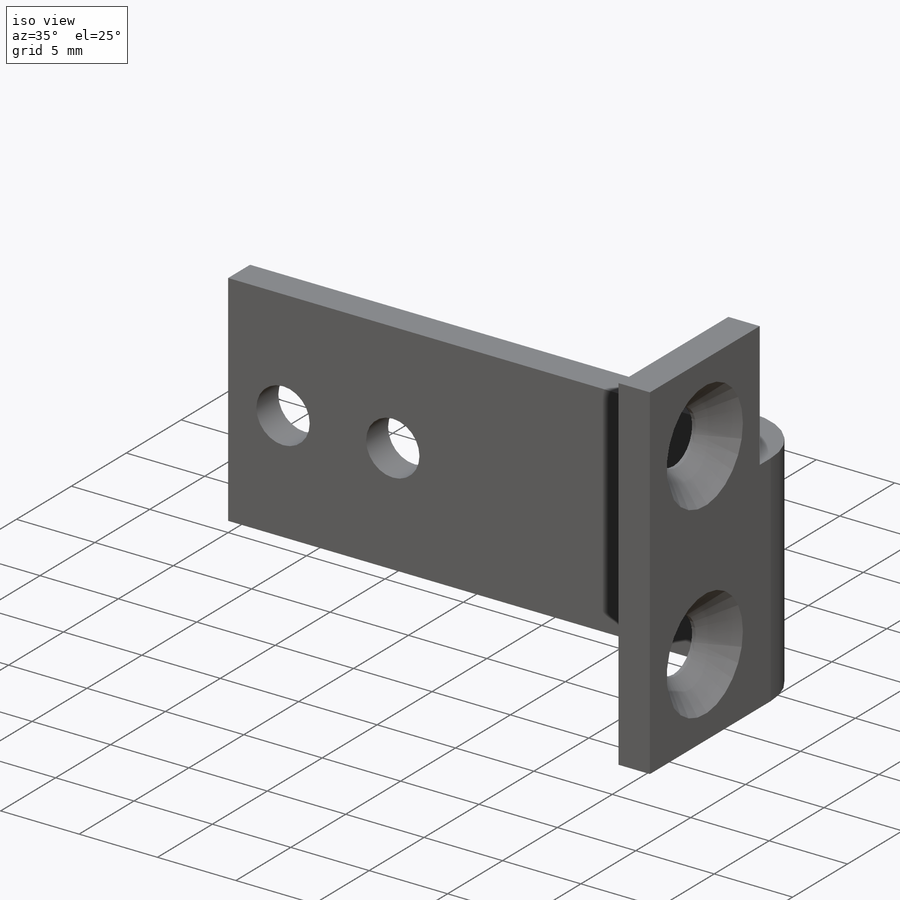
[diagram: iso view]
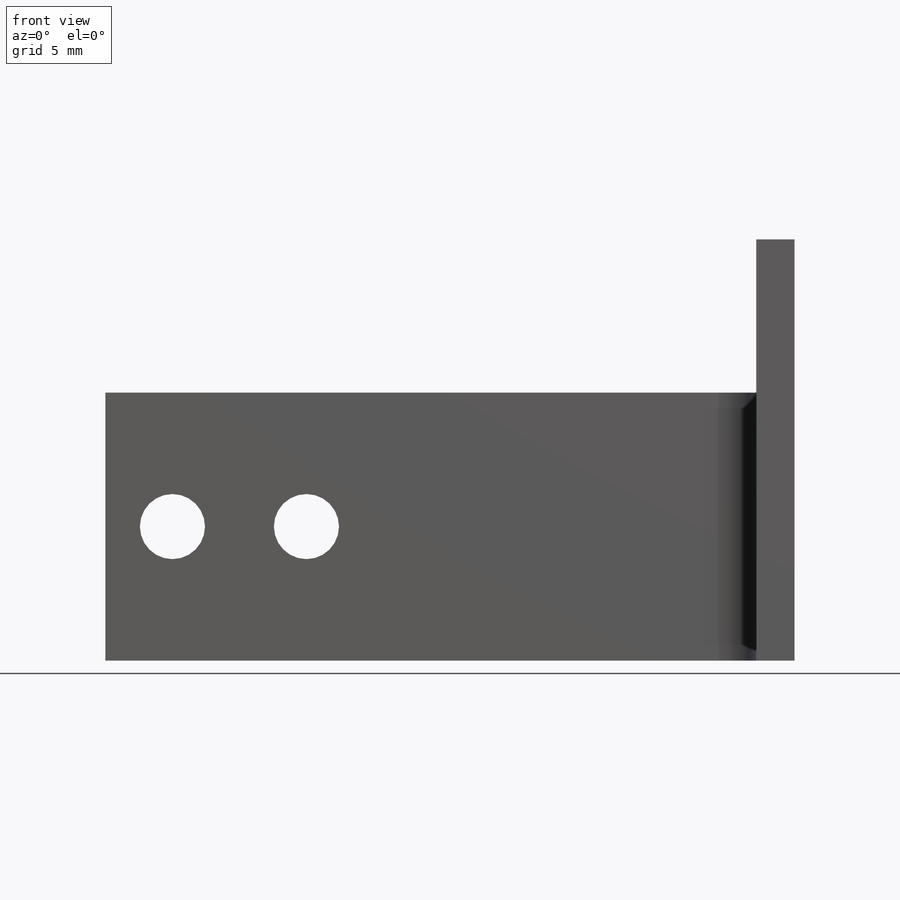
[diagram: front view]
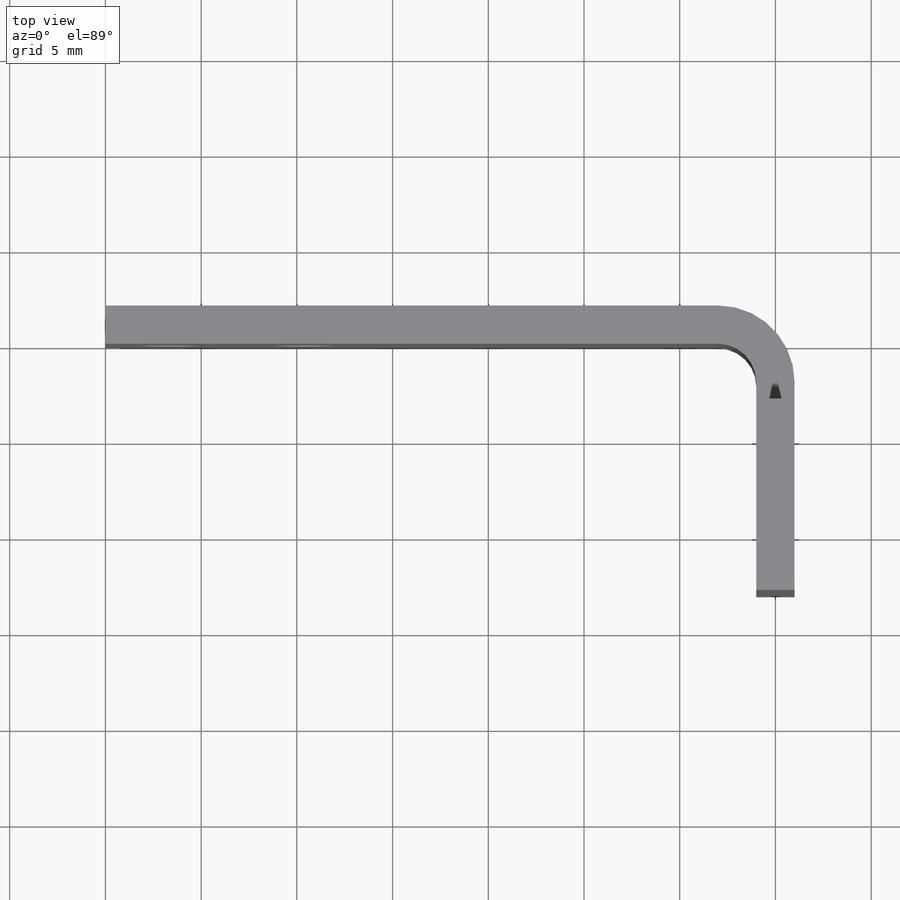
[diagram: top view]
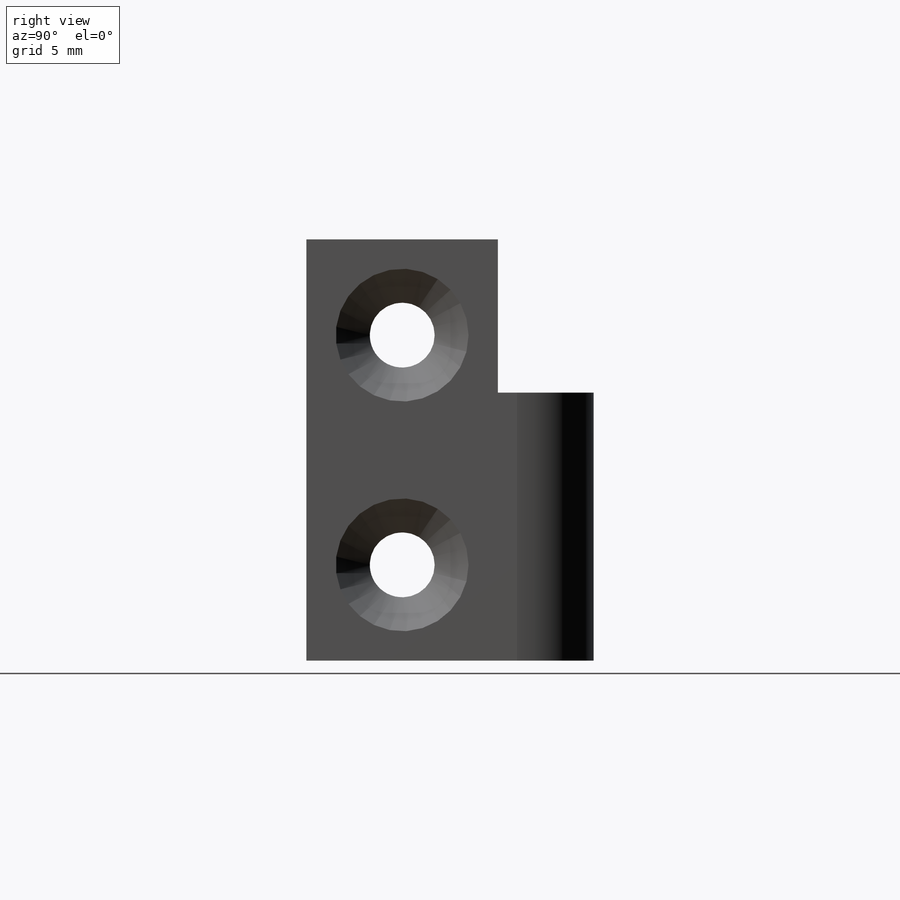
[diagram: right view]
SOLIDWORKS PART (.sldprt)
format: sldprt  version: not decoded by parser v0  size: 284,672 bytes
history: native  units: mm
features: sketch x15, hole x4, plane x3, sheet_metal_op x2, material x1, cut_extrude x1 + 3 further entries (+9 scaffold rows collapsed; 4 parser-record rows omitted)
feature tree (42):
  scaffold x9  (default folders/planes/origin — collapsed)
  material  "Material <nicht festgelegt>"
  plane  "Ebene vorne"
  plane  "Ebene oben"
  plane  "Ebene rechts"
  sketch  "Skizze1"  dims[c1.D1=34.0mm c1.D2=14.0mm c2.D1=2.0mm c2.D2=0.5 c2.D3=0.0mm c2.D6=500.0mm]
  sheet_metal_op  "Basis-Blech1"
  sketch  "Skizze9"  dims[c1.D1=13.0mm c1.D2=22.0mm c1.D3=3.0mm c2.D1=2.0mm c2.D4=90.0deg c2.D5=1.0 c2.D8=1.0mm c2.D9=1.0mm c3.D1=0.7366mm c3.D2=500.0mm c3.D3=0.0mm c3.D6=10.0mm c3.D7=13.0mm]
  sketch  "Skizze10"  dims[D1=3.4mm D2=3.5mm D3=10.5mm]
  cut_extrude  "Schnitt-Linear austragen1"  [1 undecoded]
  hole  "Formsenkung für M3 Senkschraube mit Innensechskant1"  Diameter=3.4mm Depth=36mm
  sketch  "Skizze12"  dims[D1=5.0mm]
  sketch  "Skizze11"  dims[hole-wizard template sketch: 54 standard entries collapsed; hole parameters kept: c17.Bohrerdurchmesser=3.4mm c17.Bohrungstiefe=36.0mm c17.Senkdurchmesser (Oben)=6.94mm c17.D4=~3.666174mm c17.Senkwinkel (Oben)=90.0deg]
  sketch  "Biegung-Linien1"
  sketch  "Rahmen1"
  sheet_metal_op  "Blech(2)"
  "Abwicklung(2)"
  sketch  "Biegung-Linien2"
  sketch  "Rahmen2"
  parser-record x4  (decoder bookkeeping rows leaked as tree rows — omitted from the tree; the rows remain in map.json)
  hole  "Abwicklung(2)"  [1 undecoded]
  sketch  "Biegung-Linien2"
  sketch  "Rahmen2"
  hole  "Abwicklung(2)"  [1 undecoded]
  sketch  "Biegung-Linien2"
  sketch  "Rahmen2"
  "Abwickeln-<Kantenbiegung1>1"
  hole  "Abwicklung(2)"  [1 undecoded]
  sketch  "Biegung-Linien2"
  sketch  "Rahmen2"
  "Abwickeln-<Kantenbiegung1>1"
decode coverage: 6 of 22 modeling features carry decoded parameters; 3 rows unclassified (native names shown)
note: ~ marks probable driven/reference dimensions
note: 4 parameter values undecoded
summary: no parameter record found for 4 features
note: suppression state not decoded; provenance and decode notes live in map.json
